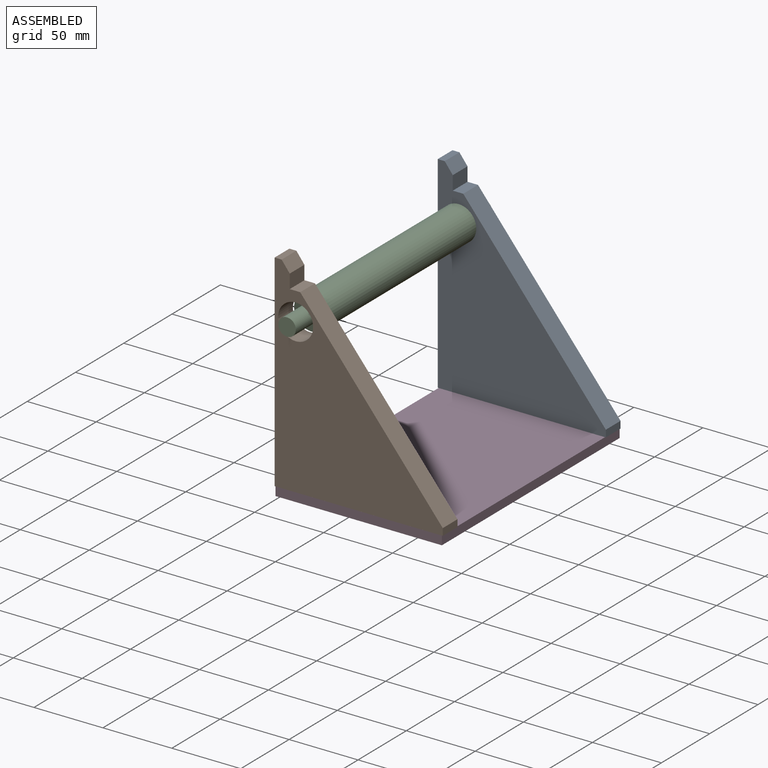
[diagram: assembled view]
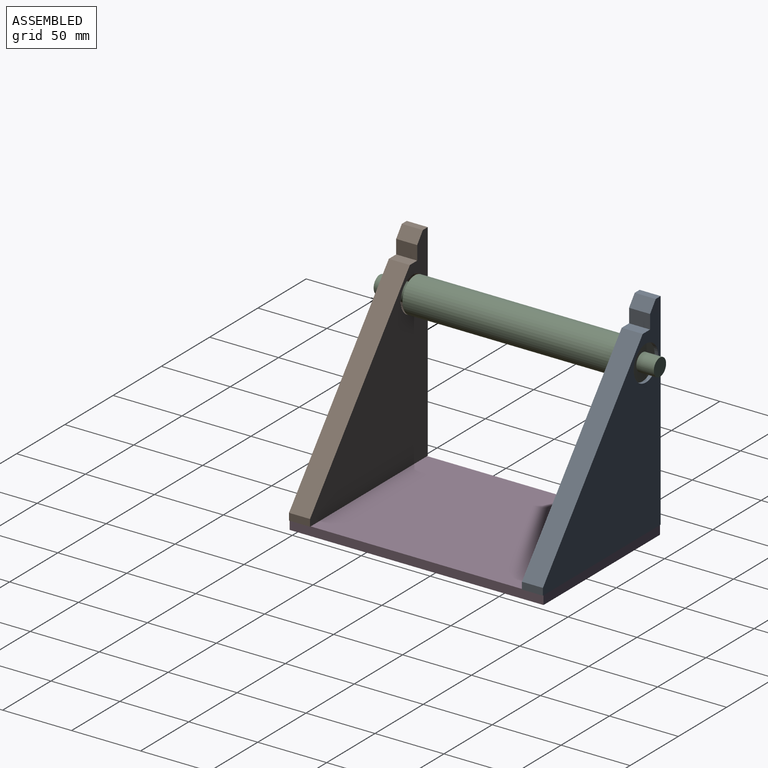
[diagram: assembled view, second angle]
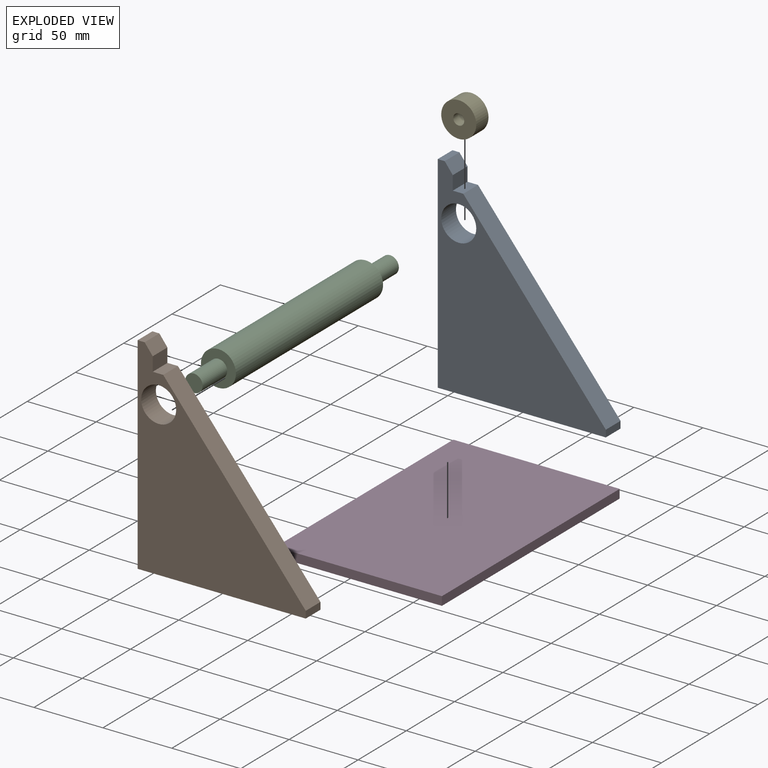
[diagram: exploded view]
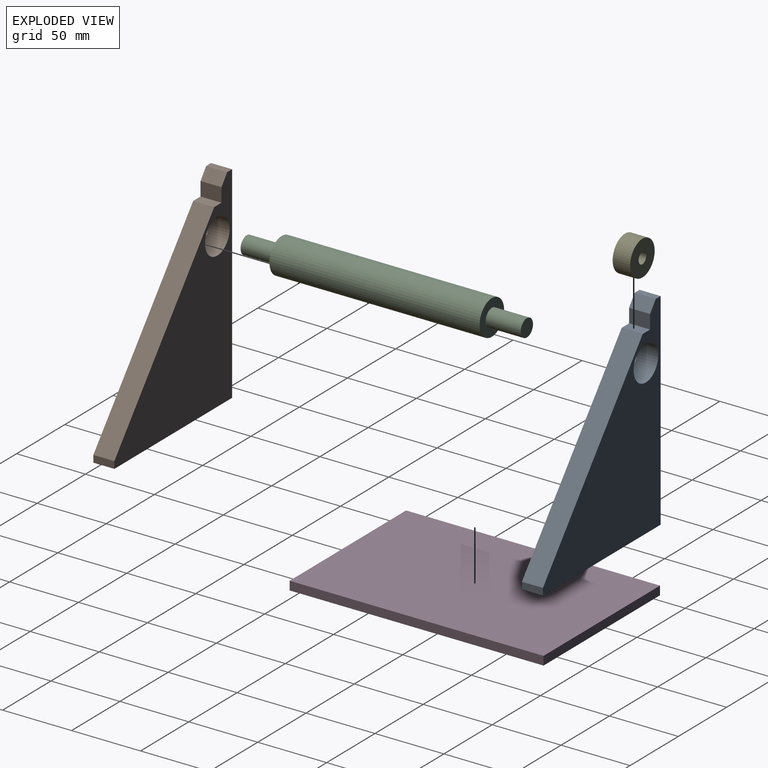
[diagram: exploded view, second angle]
ASSEMBLY  parts=5 mates=4
PART A: 11 faces, bbox 121.9x15.2x149.9 mm
  f0: plane 15.24x7.62mm, normal (0,0,1), area 116.1mm2, adj f1,f7,f8,f9
  f1: plane 15.24x10.16mm, normal (1,0,0), area 154.8mm2, adj f0,f2,f8,f9
  f2: plane 15.24x7.62mm, normal (0.79,0,0.61), area 146.3mm2, adj f1,f3,f8,f9
  f3: plane 15.24x5.08mm, normal (0,0,1), area 77.4mm2, adj f2,f4,f8,f9
  f4: plane 149.86x15.24mm, normal (-1,0,0), area 2283.9mm2, adj f3,f5,f8,f9
  f5: plane 121.92x15.24mm, normal (0,0,-1), area 1858.1mm2, adj f4,f6,f8,f9
  f6: plane 15.24x5.08mm, normal (1,0,0), area 77.4mm2, adj f5,f7,f8,f9
  f7: plane 127x103.38mm, normal (0.78,0,0.63), area 2495.6mm2, adj f0,f6,f8,f9
  f8: plane 149.86x121.92mm, normal (0,-1,0), area 9203.9mm2, adj f0,f1,f2,f3,f4,f5,f6,f7
  f9: plane 149.86x121.92mm, normal (0,1,0), area 9203.9mm2, adj f0,f1,f2,f3,f4,f5,f6,f7
  f10: cylinder r=12.7mm len=25.4mm, axis (0,-1,0), area 1216.1mm2, adj f8,f9
PART B: same geometry as A
PART C: 7 faces, bbox 25.4x203.2x25.4 mm
  f0: cylinder r=12.7mm len=152.4mm, axis (0,1,0), area 12161mm2, adj f1,f2
  f1: plane 25.4x25.4mm, normal (0,1,0), area 380mm2, adj f0,f5
  f2: plane 25.4x25.4mm, normal (0,-1,0), area 380mm2, adj f0,f3
  f3: cylinder r=6.35mm len=25.4mm, axis (0,1,0), area 1013.4mm2, adj f2,f4
  f4: plane 12.7x12.7mm, normal (0,-1,0), area 126.7mm2, adj f3
  f5: cylinder r=6.35mm len=25.4mm, axis (0,-1,0), area 1013.4mm2, adj f1,f6
  f6: plane 12.7x12.7mm, normal (0,1,0), area 126.7mm2, adj f5
PART D: 6 faces, bbox 120.7x184.2x6.4 mm
  f0: plane 120.65x6.35mm, normal (0,1,0), area 766.1mm2, adj f1,f3,f4,f5
  f1: plane 184.15x6.35mm, normal (-1,0,0), area 1169.4mm2, adj f0,f2,f4,f5
  f2: plane 120.65x6.35mm, normal (0,-1,0), area 766.1mm2, adj f1,f3,f4,f5
  f3: plane 184.15x6.35mm, normal (1,0,0), area 1169.4mm2, adj f0,f2,f4,f5
  f4: plane 184.15x120.65mm, normal (0,0,1), area 22217.7mm2, adj f0,f1,f2,f3
  f5: plane 184.15x120.65mm, normal (0,0,-1), area 22217.7mm2, adj f0,f1,f2,f3
PART E: 4 faces, bbox 25.4x12.7x25.4 mm
  f0: cylinder r=3.97mm len=12.7mm, axis (0,1,0), area 316.7mm2, adj f2,f3
  f1: cylinder r=12.7mm len=25.4mm, axis (0,1,0), area 1013.4mm2, adj f2,f3
  f2: plane 25.4x25.4mm, normal (0,-1,0), area 457.2mm2, adj f0,f1
  f3: plane 25.4x25.4mm, normal (0,1,0), area 457.2mm2, adj f0,f1
PLACE A t=(-199.16,82.59,70.03)mm
PLACE B t=(-199.16,-86.32,70.03)mm
PLACE C t=(-234.16,67.35,154.96)mm
PLACE D t=(-211.74,-50.96,36.85)mm
PLACE E t=(-234.16,80.05,154.96)mm
MATE slider A.f9 <-> D.f0  axis (0,1,0) through (-188.44,82.59,43.2)mm
MATE fastened C.f0 <-> A.f10  axis (0,1,0) through (-234.16,67.35,154.96)mm
MATE slider B.f8 <-> D.f2  axis (0,-1,0) through (-188.44,-101.56,43.2)mm
MATE fastened E.f0 <-> C.f0  axis (0,-1,0) through (-234.16,67.35,154.96)mm
